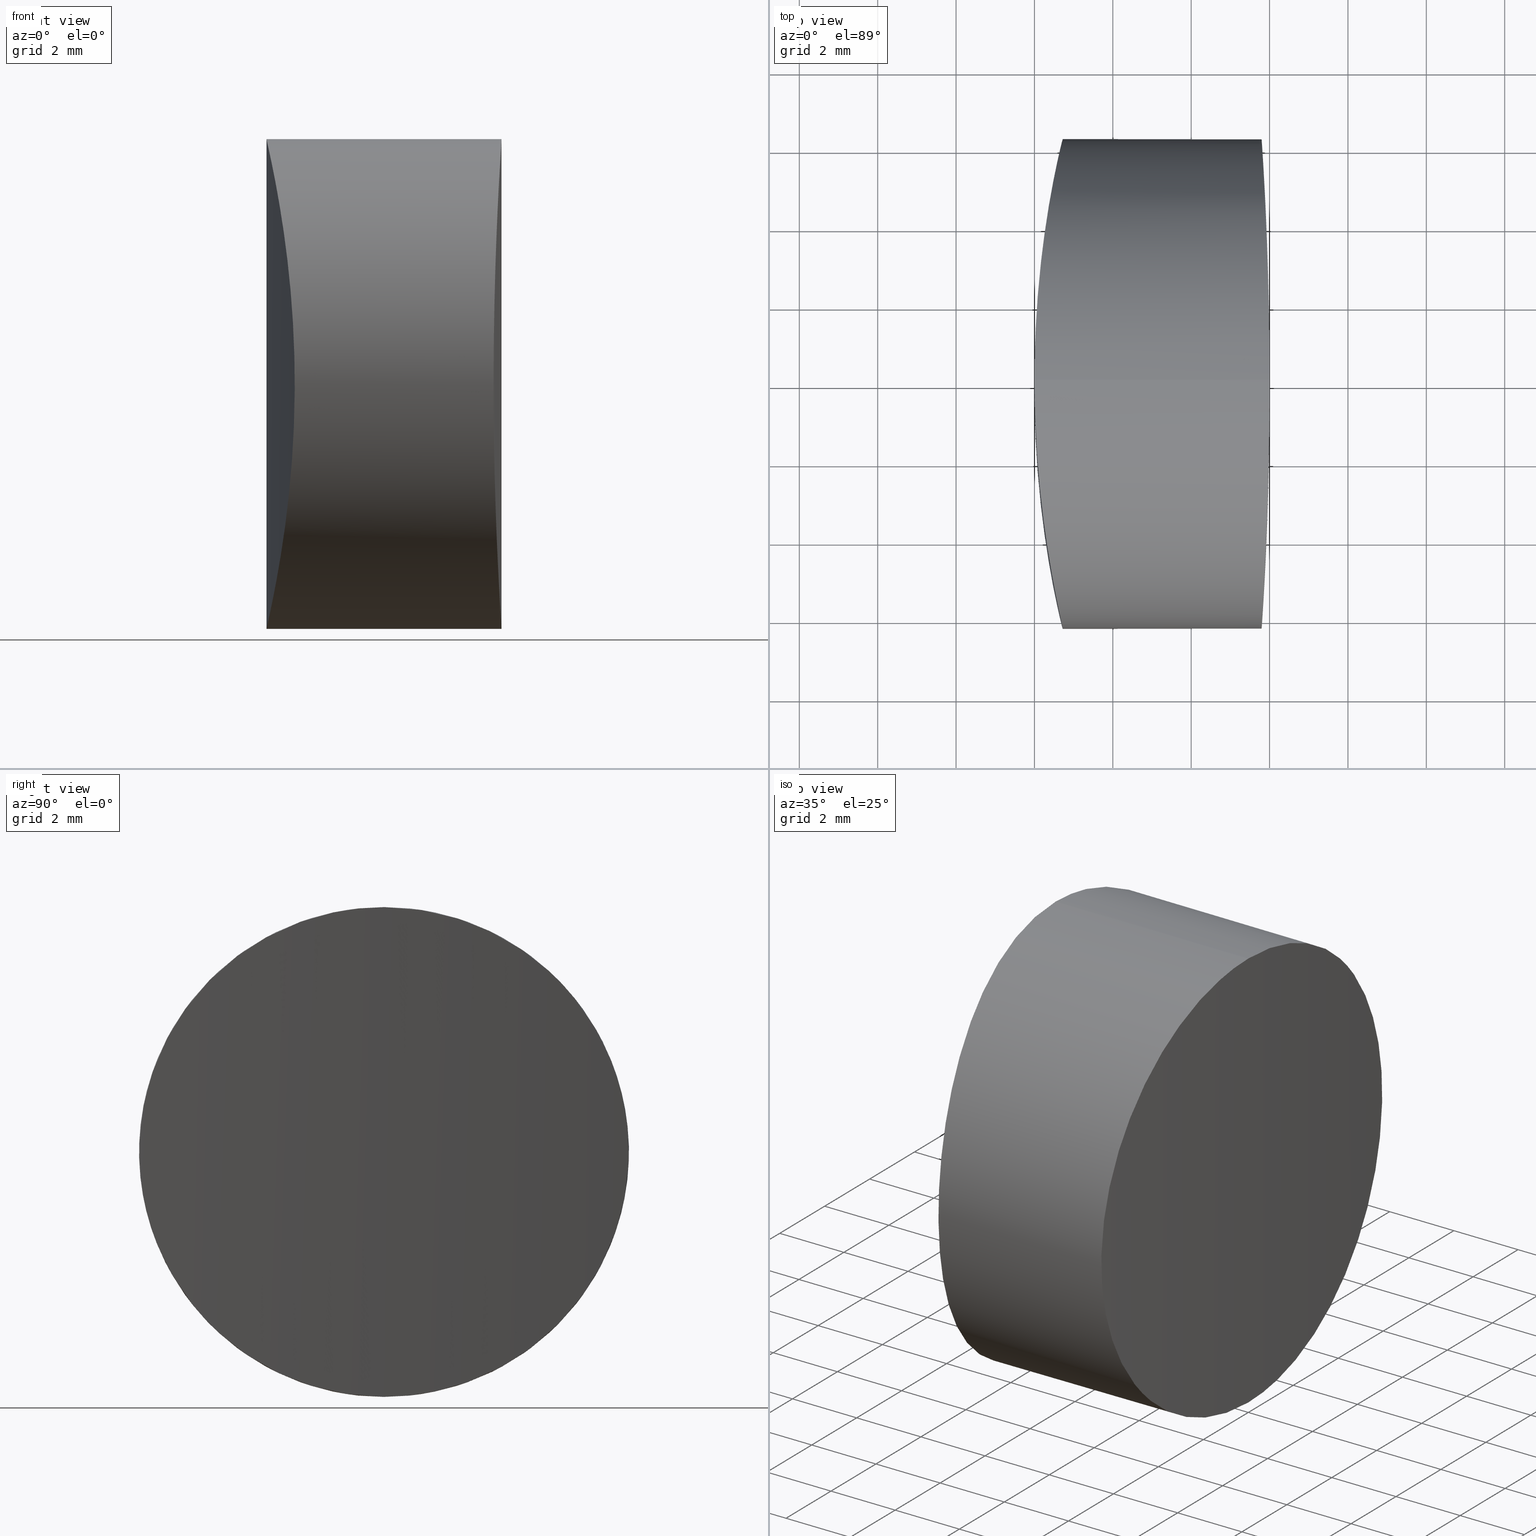
[diagram: canonical four-view strip — front | top / right | iso, engineering-drawing reading convention]
A machine part, canonical four-view strip (front | top / right | iso — engineering-drawing reading convention). The complete STEP part file that produces these views, byte-faithful:
ISO-10303-21;
HEADER;
FILE_DESCRIPTION (( 'STEP AP203' ),
    '1' );
FILE_NAME ('159001.STEP',
    '2024-12-10T00:45:07',
    ( '' ),
    ( '' ),
    'SwSTEP 2.0',
    'SolidWorks 2020',
    '' );
FILE_SCHEMA (( 'CONFIG_CONTROL_DESIGN' ));
ENDSEC;

DATA;
#1 = CARTESIAN_POINT ( 'NONE',  ( 3.970701140584363742, 2.393867264434657471, 0.6318106251234297810 ) ) ;
#2 = DATE_AND_TIME ( #212, #321 ) ;
#3 = PERSON_AND_ORGANIZATION ( #48, #12 ) ;
#4 = CC_DESIGN_PERSON_AND_ORGANIZATION_ASSIGNMENT ( #284, #55, ( #289 ) ) ;
#5 = CARTESIAN_POINT ( 'NONE',  ( 4.000000000000034639, -0.4076888879730743986, 12.66592046075587952 ) ) ;
#6 = CARTESIAN_POINT ( 'NONE',  ( 3.949354091395367305, -3.123143176412308097, 11.83351119732497914 ) ) ;
#7 = APPROVAL ( #56, 'δָ��' ) ;
#8 = APPLICATION_CONTEXT ( 'configuration controlled 3d designs of mechanical parts and assemblies' ) ;
#9 = CARTESIAN_POINT ( 'NONE',  ( 3.817280117353551994, -5.920506838117778337, 8.428926162006428413 ) ) ;
#10 = CARTESIAN_POINT ( 'NONE',  ( 3.885084351708768313, -4.704672186004944301, 10.55048873301067935 ) ) ;
#11 = CARTESIAN_POINT ( 'NONE',  ( -1.800133176060619622, -3.307827071247699813, 11.72271307982132349 ) ) ;
#12 = ORGANIZATION ( 'δָ��', 'δָ��', '' ) ;
#13 = CARTESIAN_POINT ( 'NONE',  ( 4.000000000000031086, 7.654041361186688762E-16, 12.66592046075587596 ) ) ;
#14 = CARTESIAN_POINT ( 'NONE',  ( -1.999999999999988232, -2.025794804607558316E-23, 0.1659204607558764366 ) ) ;
#15 = APPLICATION_PROTOCOL_DEFINITION ( 'international standard', 'config_control_design', 1994, #141 ) ;
#16 = EDGE_CURVE ( 'NONE', #145, #136, #259, .T. ) ;
#17 = CARTESIAN_POINT ( 'NONE',  ( -1.859925259449356938, 2.772965657853352806, 0.8110136745057094920 ) ) ;
#18 = CARTESIAN_POINT ( 'NONE',  ( -1.277742385581164042, -6.249644897103480368, 5.996348228157730276 ) ) ;
#19 = PERSON_AND_ORGANIZATION ( #48, #12 ) ;
#20 = CC_DESIGN_PERSON_AND_ORGANIZATION_ASSIGNMENT ( #326, #274, ( #224 ) ) ;
#21 = PERSON_AND_ORGANIZATION ( #48, #12 ) ;
#22 = CARTESIAN_POINT ( 'NONE',  ( 3.997319152655782304, 0.8217832976080150509, 12.62511903696444904 ) ) ;
#23 = DIRECTION ( 'NONE',  ( 1.000000000000000000, -0.000000000000000000, -0.000000000000000000 ) ) ;
#24 = CARTESIAN_POINT ( 'NONE',  ( 3.847259097544624584, 5.414084262280948856, 9.545173002638325244 ) ) ;
#25 = VECTOR ( 'NONE', #74, 1000.000000000000000 ) ;
#26 = CARTESIAN_POINT ( 'NONE',  ( 3.871542897612740841, 4.969767043136539719, 10.22769198370416532 ) ) ;
#27 = CARTESIAN_POINT ( 'NONE',  ( 3.949354187978777020, 3.123140200589369808, 0.9983280171350860099 ) ) ;
#28 = CARTESIAN_POINT ( 'NONE',  ( 3.836136953617952816, 5.607516269999798908, 9.183643559558131386 ) ) ;
#29 = ORIENTED_EDGE ( 'NONE', *, *, #16, .F. ) ;
#30 = CARTESIAN_POINT ( 'NONE',  ( 3.911645654583979947, 4.127901318534466846, 1.705397611034966898 ) ) ;
#31 = VERTEX_POINT ( 'NONE', #247 ) ;
#32 = CARTESIAN_POINT ( 'NONE',  ( 3.943262246357793988, -3.304407207787549261, 1.106981421419803047 ) ) ;
#33 = CARTESIAN_POINT ( 'NONE',  ( 3.986547965300297314, -1.618921193461015928, 12.45606951595329015 ) ) ;
#34 = CARTESIAN_POINT ( 'NONE',  ( 3.853150653249847402, -5.309080934119167594, 3.111744134081134483 ) ) ;
#35 = ORIENTED_EDGE ( 'NONE', *, *, #16, .T. ) ;
#36 = CARTESIAN_POINT ( 'NONE',  ( 25.40000000000000213, 0.000000000000000000, 13.00000000000000000 ) ) ;
#37 = CARTESIAN_POINT ( 'NONE',  ( -1.688777736513090044, -4.128307657407202846, 1.705877874206109146 ) ) ;
#38 = DIRECTION ( 'NONE',  ( -1.000000000000000000, 0.000000000000000000, 0.000000000000000000 ) ) ;
#39 = CARTESIAN_POINT ( 'NONE',  ( -1.368666903749001129, -5.848499614446377670, 4.202453446085107736 ) ) ;
#40 = DIRECTION ( 'NONE',  ( -0.000000000000000000, -0.000000000000000000, -1.000000000000000000 ) ) ;
#41 = CARTESIAN_POINT ( 'NONE',  ( -1.999999999999989120, -0.4090758849806570563, 0.1659204607558748545 ) ) ;
#42 = APPLICATION_PROTOCOL_DEFINITION ( 'international standard', 'config_control_design', 1994, #8 ) ;
#43 = CARTESIAN_POINT ( 'NONE',  ( -1.326400351442639458, -6.038484327259769913, 4.790667046276845475 ) ) ;
#44 =( LENGTH_UNIT ( ) NAMED_UNIT ( * ) SI_UNIT ( .MILLI., .METRE. ) );
#45 = EDGE_CURVE ( 'NONE', #136, #145, #273, .T. ) ;
#46 = COORDINATED_UNIVERSAL_TIME_OFFSET ( 8, 0, .AHEAD. ) ;
#47 = CARTESIAN_POINT ( 'NONE',  ( 4.000000000000031086, 7.654041361186688762E-16, 12.66592046075587596 ) ) ;
#48 = PERSON ( 'δָ��', 'δָ��', 'δָ��', ('δָ��'), ('δָ��'), ('δָ��') ) ;
#49 = CARTESIAN_POINT ( 'NONE',  ( -1.862258568810049253, 2.769757839151302026, 12.03343208499295258 ) ) ;
#50 = FACE_OUTER_BOUND ( 'NONE', #266, .T. ) ;
#51 = CARTESIAN_POINT ( 'NONE',  ( 3.806684533421547556, 6.089399972585498588, 4.993538616398564223 ) ) ;
#52 = CARTESIAN_POINT ( 'NONE',  ( -1.277574694169997915, 6.250360675676211564, 6.007157946108796054 ) ) ;
#53 = APPROVAL_ROLE ( '' ) ;
#54 = ORIENTED_EDGE ( 'NONE', *, *, #135, .F. ) ;
#55 = PERSON_AND_ORGANIZATION_ROLE ( 'classification_officer' ) ;
#56 = APPROVAL_STATUS ( 'not_yet_approved' ) ;
#57 = CARTESIAN_POINT ( 'NONE',  ( 3.949151214896460704, -3.129400080055220634, 1.001914720596386976 ) ) ;
#58 = CARTESIAN_POINT ( 'NONE',  ( 3.809242562367329388, -6.049416893789776317, 4.793020952678850755 ) ) ;
#59 = LOCAL_TIME ( 8, 45, 7.000000000000000000, #46 ) ;
#60 = CYLINDRICAL_SURFACE ( 'NONE', #95, 96.00000000000002842 ) ;
#61 = CARTESIAN_POINT ( 'NONE',  ( -1.990843026165532326, -0.8154627092326075521, 0.2056947684451029823 ) ) ;
#62 = PRODUCT_DEFINITION_SHAPE ( 'NONE', 'NONE',  #187 ) ;
#63 = CARTESIAN_POINT ( 'NONE',  ( 3.997319158381865023, -0.8217824357834193627, 0.2067217981263086424 ) ) ;
#64 = CARTESIAN_POINT ( 'NONE',  ( -1.862254581752714966, -2.769797751248795237, 0.7984280614749160732 ) ) ;
#65 = CC_DESIGN_PERSON_AND_ORGANIZATION_ASSIGNMENT ( #103, #109, ( #89 ) ) ;
#66 = AXIS2_PLACEMENT_3D ( 'NONE', #220, #119, #38 ) ;
#67 = DIRECTION ( 'NONE',  ( -1.000000000000000000, 0.000000000000000000, 0.000000000000000000 ) ) ;
#68 = CARTESIAN_POINT ( 'NONE',  ( -1.999999999999988232, -2.025794804607558316E-23, 0.1659204607558764366 ) ) ;
#69 =( GEOMETRIC_REPRESENTATION_CONTEXT ( 3 ) GLOBAL_UNCERTAINTY_ASSIGNED_CONTEXT ( ( #115 ) ) GLOBAL_UNIT_ASSIGNED_CONTEXT ( ( #44, #199, #198 ) ) REPRESENTATION_CONTEXT ( 'NONE', 'WORKASPACE' ) );
#70 = DATE_AND_TIME ( #229, #185 ) ;
#71 = CARTESIAN_POINT ( 'NONE',  ( -1.546775744305171729, 4.968328230239867693, 2.602332432678148955 ) ) ;
#72 = CARTESIAN_POINT ( 'NONE',  ( -1.287350413805169902, 6.209036227751648873, 5.592257759167049258 ) ) ;
#73 = CARTESIAN_POINT ( 'NONE',  ( -1.315050644076650066, 6.088329676846095495, 7.842938738167732460 ) ) ;
#74 = DIRECTION ( 'NONE',  ( 1.000000000000000000, -0.000000000000000000, -0.000000000000000000 ) ) ;
#75 = CARTESIAN_POINT ( 'NONE',  ( 4.000000000000034639, 0.4076888881608913828, 12.66592046075587419 ) ) ;
#76 = EDGE_CURVE ( 'NONE', #31, #79, #317, .T. ) ;
#77 = CARTESIAN_POINT ( 'NONE',  ( 3.871597177664503064, 4.968754873974420505, 2.602686793415346145 ) ) ;
#78 = CARTESIAN_POINT ( 'NONE',  ( -1.926573552974540915, 2.014189616208664990, 12.33601367040646224 ) ) ;
#79 = VERTEX_POINT ( 'NONE', #208 ) ;
#80 = CARTESIAN_POINT ( 'NONE',  ( 3.835785147991723765, 5.614895644616908044, 3.640456923618365259 ) ) ;
#81 = CARTESIAN_POINT ( 'NONE',  ( 3.817280280653655655, 5.920504197400468627, 4.402907011145934746 ) ) ;
#82 = ORIENTED_EDGE ( 'NONE', *, *, #76, .F. ) ;
#83 = CARTESIAN_POINT ( 'NONE',  ( -1.999999999999988676, -0.4090695196828597613, 12.66592046075587419 ) ) ;
#84 = APPROVAL_DATE_TIME ( #2, #7 ) ;
#85 = SHAPE_DEFINITION_REPRESENTATION ( #62, #110 ) ;
#86 = CARTESIAN_POINT ( 'NONE',  ( 3.943394893887861574, -3.300637131425163240, 11.72727709622732206 ) ) ;
#87 = DIRECTION ( 'NONE',  ( 1.000000000000000000, -0.000000000000000000, -0.000000000000000000 ) ) ;
#88 = DIRECTION ( 'NONE',  ( -0.000000000000000000, -0.000000000000000000, -1.000000000000000000 ) ) ;
#89 = PRODUCT_DEFINITION_FORMATION_WITH_SPECIFIED_SOURCE ( '�κ�', '', #224, .NOT_KNOWN. ) ;
#90 = CARTESIAN_POINT ( 'NONE',  ( 3.911645502597854041, -4.127904855501768111, 11.12644024944475696 ) ) ;
#91 = EDGE_CURVE ( 'NONE', #136, #79, #204, .T. ) ;
#92 = CARTESIAN_POINT ( 'NONE',  ( -1.928290907776921692, 2.017260835010109332, 0.4861948975080956359 ) ) ;
#93 = CARTESIAN_POINT ( 'NONE',  ( 3.911666615620656096, -4.127648566779655859, 1.704741974636377666 ) ) ;
#94 = CARTESIAN_POINT ( 'NONE',  ( -1.800127624215231981, 3.307872807059071274, 1.109156230123880427 ) ) ;
#95 = AXIS2_PLACEMENT_3D ( 'NONE', #316, #88, #67 ) ;
#96 = APPROVAL_ROLE ( '' ) ;
#97 = CARTESIAN_POINT ( 'NONE',  ( -1.952640428185131949, -1.622234451863575844, 0.3766473205276363312 ) ) ;
#98 = CARTESIAN_POINT ( 'NONE',  ( 3.821591588841473985, 5.850536504395219772, 4.207830710039567101 ) ) ;
#99 = LINE ( 'NONE', #255, #327 ) ;
#100 = CARTESIAN_POINT ( 'NONE',  ( -1.368676080480692558, 5.848457640996162610, 8.629498040734659980 ) ) ;
#101 = CARTESIAN_POINT ( 'NONE',  ( 3.796314688086376510, 6.250287374589430733, 6.824480164821547845 ) ) ;
#102 = CARTESIAN_POINT ( 'NONE',  ( -6.500000000000000000, 0.000000000000000000, 6.415920460755876853 ) ) ;
#103 = PERSON_AND_ORGANIZATION ( #48, #12 ) ;
#104 = CARTESIAN_POINT ( 'NONE',  ( 3.809242420778939930, 6.049419129845787779, 8.038811753146719141 ) ) ;
#105 = APPROVAL_PERSON_ORGANIZATION ( #19, #183, #96 ) ;
#106 = ADVANCED_FACE ( 'NONE', ( #50 ), #335, .T. ) ;
#107 = APPROVAL_DATE_TIME ( #70, #183 ) ;
#108 = CARTESIAN_POINT ( 'NONE',  ( 3.979150040975546698, 2.010237166812398169, 0.4944972460249934532 ) ) ;
#109 = PERSON_AND_ORGANIZATION_ROLE ( 'creator' ) ;
#110 = ADVANCED_BREP_SHAPE_REPRESENTATION ( '159001', ( #203, #111 ), #69 ) ;
#111 = AXIS2_PLACEMENT_3D ( 'NONE', #230, #252, #196 ) ;
#112 = CARTESIAN_POINT ( 'NONE',  ( 3.799038935728874744, -6.208905874860579210, 7.239228859638980218 ) ) ;
#113 = CC_DESIGN_DATE_AND_TIME_ASSIGNMENT ( #123, #227, ( #187 ) ) ;
#114 = CARTESIAN_POINT ( 'NONE',  ( -6.500000000000000000, 0.000000000000000000, 6.415920460755876853 ) ) ;
#115 = UNCERTAINTY_MEASURE_WITH_UNIT (LENGTH_MEASURE( 1.000000000000000082E-05 ), #44, 'distance_accuracy_value', 'NONE');
#116 = CARTESIAN_POINT ( 'NONE',  ( 3.970701298954986580, -2.393869626790158023, 12.20002931895609066 ) ) ;
#117 = DIRECTION ( 'NONE',  ( -0.000000000000000000, -0.000000000000000000, -1.000000000000000000 ) ) ;
#118 = CARTESIAN_POINT ( 'NONE',  ( -1.459491742331598063, -5.420397806691622300, 9.553916832810015691 ) ) ;
#119 = DIRECTION ( 'NONE',  ( -0.000000000000000000, -0.000000000000000000, -1.000000000000000000 ) ) ;
#120 = CARTESIAN_POINT ( 'NONE',  ( -1.954594591572518913, 1.627095634744305741, 0.3675766573735297915 ) ) ;
#121 = CALENDAR_DATE ( 2024, 10, 12 ) ;
#122 = CARTESIAN_POINT ( 'NONE',  ( -1.418654394978109634, -5.616530468985599711, 9.187919713756221185 ) ) ;
#123 = DATE_AND_TIME ( #121, #340 ) ;
#124 = VECTOR ( 'NONE', #218, 1000.000000000000000 ) ;
#125 = CARTESIAN_POINT ( 'NONE',  ( -1.287354884381756603, -6.209017109956821656, 7.239723577594262771 ) ) ;
#126 = APPROVAL_STATUS ( 'not_yet_approved' ) ;
#127 = CALENDAR_DATE ( 2024, 10, 12 ) ;
#128 = CARTESIAN_POINT ( 'NONE',  ( -1.594925943440980376, 4.703060275166605742, 10.55218012694327179 ) ) ;
#129 = CC_DESIGN_PERSON_AND_ORGANIZATION_ASSIGNMENT ( #137, #286, ( #89 ) ) ;
#130 = CARTESIAN_POINT ( 'NONE',  ( 3.799022910531853370, 6.209155694579083118, 7.237889752115528985 ) ) ;
#131 = APPROVAL_PERSON_ORGANIZATION ( #3, #7, #53 ) ;
#132 = CARTESIAN_POINT ( 'NONE',  ( -6.500000000000000000, 0.000000000000000000, 0.1659204607558761313 ) ) ;
#133 = CARTESIAN_POINT ( 'NONE',  ( 3.830892640603730026, 5.696155008867870073, 8.996287822504227094 ) ) ;
#134 = CARTESIAN_POINT ( 'NONE',  ( -1.688785723069319733, 4.128255163304336506, 11.12600849439494510 ) ) ;
#135 = EDGE_CURVE ( 'NONE', #145, #31, #155, .T. ) ;
#136 = VERTEX_POINT ( 'NONE', #280 ) ;
#137 = PERSON_AND_ORGANIZATION ( #48, #12 ) ;
#138 = CARTESIAN_POINT ( 'NONE',  ( 3.943395001072908634, 3.300634010918813033, 1.104561893720724663 ) ) ;
#139 = CARTESIAN_POINT ( 'NONE',  ( -1.878369828570004563, -2.585874087644202568, 12.10959023202793539 ) ) ;
#140 = COORDINATED_UNIVERSAL_TIME_OFFSET ( 8, 0, .AHEAD. ) ;
#141 = APPLICATION_CONTEXT ( 'configuration controlled 3d designs of mechanical parts and assemblies' ) ;
#142 = CARTESIAN_POINT ( 'NONE',  ( 3.989734147802635356, -1.418317034022544831, 12.50633566470187752 ) ) ;
#143 = CARTESIAN_POINT ( 'NONE',  ( 3.830892825837849625, -5.696151894775535851, 3.835546239348476050 ) ) ;
#144 = CARTESIAN_POINT ( 'NONE',  ( 3.924879715627688892, -3.812107214572827640, 1.446403234941930460 ) ) ;
#145 = VERTEX_POINT ( 'NONE', #165 ) ;
#146 = CARTESIAN_POINT ( 'NONE',  ( 3.987112076101931191, -1.623245901839603045, 0.3665777571289874359 ) ) ;
#147 = CARTESIAN_POINT ( 'NONE',  ( -1.963876316551206980, -1.420946237911562493, 0.3261127927041618246 ) ) ;
#148 = CARTESIAN_POINT ( 'NONE',  ( 3.997402903059730228, -0.8132501256730777506, 12.62641532790719090 ) ) ;
#149 = CARTESIAN_POINT ( 'NONE',  ( -1.547160775702159929, -4.966282481072711086, 2.599515193382293532 ) ) ;
#150 = CARTESIAN_POINT ( 'NONE',  ( -1.593582395901175897, 4.710914236144385647, 2.288228895437081079 ) ) ;
#151 = APPROVAL_ROLE ( '' ) ;
#152 = CARTESIAN_POINT ( 'NONE',  ( -1.351181746026651975, -5.929579517754419271, 8.433215954803619852 ) ) ;
#153 = APPROVAL_DATE_TIME ( #331, #291 ) ;
#154 = CARTESIAN_POINT ( 'NONE',  ( -1.952641877828973582, 1.622209684167594812, 12.45520014972431255 ) ) ;
#155 = LINE ( 'NONE', #201, #124 ) ;
#156 = CARTESIAN_POINT ( 'NONE',  ( -1.277744816031712194, 6.249634522894289113, 6.835639056565093519 ) ) ;
#157 = CARTESIAN_POINT ( 'NONE',  ( 3.809835969932800825, 6.039776630583848060, 4.795521944217352228 ) ) ;
#158 = ORIENTED_EDGE ( 'NONE', *, *, #332, .T. ) ;
#159 = CARTESIAN_POINT ( 'NONE',  ( -1.735384002657419877, 3.814376131947823545, 11.38399394522757468 ) ) ;
#160 = ORIENTED_EDGE ( 'NONE', *, *, #76, .T. ) ;
#161 = CARTESIAN_POINT ( 'NONE',  ( 3.960418955516796125, -2.762348228958852570, 12.02606706769031319 ) ) ;
#162 = CARTESIAN_POINT ( 'NONE',  ( 3.796352340711017348, -6.249710257106227296, 6.833215861414211112 ) ) ;
#163 = CARTESIAN_POINT ( 'NONE',  ( 3.836137143758361123, -5.607513021927315933, 3.648190799253014927 ) ) ;
#164 = CARTESIAN_POINT ( 'NONE',  ( -1.859929334121180666, -2.772925473852926093, 12.02084701800902522 ) ) ;
#165 = CARTESIAN_POINT ( 'NONE',  ( -1.999999999999989120, 2.025715918517036215E-23, 12.66592046075587596 ) ) ;
#166 = CARTESIAN_POINT ( 'NONE',  ( -1.926571353868141045, -2.014219713028831737, 0.4958373847558922298 ) ) ;
#167 = CYLINDRICAL_SURFACE ( 'NONE', #237, 27.39999999999999147 ) ;
#168 = CARTESIAN_POINT ( 'NONE',  ( -1.735342481329319231, 3.814321636421825534, 1.448171787291351764 ) ) ;
#169 = ADVANCED_FACE ( 'NONE', ( #324 ), #60, .T. ) ;
#170 = PERSON_AND_ORGANIZATION_ROLE ( 'creator' ) ;
#171 = CARTESIAN_POINT ( 'NONE',  ( -1.324255236921195955, -6.048221741021194475, 8.043667006901126015 ) ) ;
#172 = COORDINATED_UNIVERSAL_TIME_OFFSET ( 8, 0, .AHEAD. ) ;
#173 = APPROVAL_STATUS ( 'not_yet_approved' ) ;
#174 = CARTESIAN_POINT ( 'NONE',  ( -1.547170903636142736, 4.966227613300333132, 10.23239650385385424 ) ) ;
#175 = CARTESIAN_POINT ( 'NONE',  ( -1.353199154503197166, 5.918623497734517791, 8.434493327166119769 ) ) ;
#176 = CARTESIAN_POINT ( 'NONE',  ( 3.960419032364648206, 2.762345549659964483, 0.8057725427426374321 ) ) ;
#177 = CARTESIAN_POINT ( 'NONE',  ( 3.924879581463222245, 3.812110609171539100, 11.38543511681904619 ) ) ;
#178 = CARTESIAN_POINT ( 'NONE',  ( -1.999999999999989120, 2.025715918517036215E-23, 12.66592046075587596 ) ) ;
#179 = ORIENTED_EDGE ( 'NONE', *, *, #269, .T. ) ;
#180 = CARTESIAN_POINT ( 'NONE',  ( 4.000000000000032863, 1.133498457493967443E-22, 0.1659204607558763811 ) ) ;
#181 = ORIENTED_EDGE ( 'NONE', *, *, #45, .T. ) ;
#182 = CARTESIAN_POINT ( 'NONE',  ( -1.990530916302228892, -0.8246798433500922565, 12.62476906551035150 ) ) ;
#183 = APPROVAL ( #173, 'δָ��' ) ;
#184 = ORIENTED_EDGE ( 'NONE', *, *, #91, .F. ) ;
#185 = LOCAL_TIME ( 8, 45, 7.000000000000000000, #298 ) ;
#186 = CARTESIAN_POINT ( 'NONE',  ( 4.000000000000037303, -0.4076884617759499174, 0.1659204607558751599 ) ) ;
#187 = PRODUCT_DEFINITION ( 'δ֪', '', #89, #319 ) ;
#188 = CARTESIAN_POINT ( 'NONE',  ( 3.960269895424069819, -2.767555838187457873, 0.8083151164004054312 ) ) ;
#189 = CC_DESIGN_SECURITY_CLASSIFICATION ( #289, ( #89 ) ) ;
#190 = CARTESIAN_POINT ( 'NONE',  ( 3.799022993395650083, -6.209154422323536870, 5.593941794411146695 ) ) ;
#191 = ORIENTED_EDGE ( 'NONE', *, *, #269, .F. ) ;
#192 = CARTESIAN_POINT ( 'NONE',  ( 3.809835829858550849, -6.039778850516621667, 8.036310725574413283 ) ) ;
#193 = CARTESIAN_POINT ( 'NONE',  ( -1.594916413526569876, -4.703115052720697520, 2.279722438152104846 ) ) ;
#194 = CARTESIAN_POINT ( 'NONE',  ( 3.796314732227913158, -6.250286698013220565, 6.007349852625088360 ) ) ;
#195 = CARTESIAN_POINT ( 'NONE',  ( -1.820852570463257880, -3.133376504974585419, 11.82759941222900757 ) ) ;
#196 = DIRECTION ( 'NONE',  ( 1.000000000000000000, 0.000000000000000000, 0.000000000000000000 ) ) ;
#197 = CARTESIAN_POINT ( 'NONE',  ( -1.820847519368841816, 3.133420498061239012, 1.004266868320667028 ) ) ;
#198 =( NAMED_UNIT ( * ) SI_UNIT ( $, .STERADIAN. ) SOLID_ANGLE_UNIT ( ) );
#199 =( NAMED_UNIT ( * ) PLANE_ANGLE_UNIT ( ) SI_UNIT ( $, .RADIAN. ) );
#200 = CARTESIAN_POINT ( 'NONE',  ( 3.979642841157838173, 2.012801628194695436, 12.34709159796433120 ) ) ;
#201 = CARTESIAN_POINT ( 'NONE',  ( -6.500000000000000000, 7.654042494670955634E-16, 12.66592046075587596 ) ) ;
#202 = CARTESIAN_POINT ( 'NONE',  ( 3.943262140410059846, 3.304410289334033024, 11.72485759007748740 ) ) ;
#203 = MANIFOLD_SOLID_BREP ( '�г�-����1', #302 ) ;
#204 = LINE ( 'NONE', #132, #25 ) ;
#205 = CARTESIAN_POINT ( 'NONE',  ( -1.911696865473067941, 2.206080125144447290, 12.26716685066609536 ) ) ;
#206 = CARTESIAN_POINT ( 'NONE',  ( -1.418644193847633961, 5.616579042898385055, 3.644018781763239456 ) ) ;
#207 = PRODUCT_RELATED_PRODUCT_CATEGORY ( 'detail', '', ( #224 ) ) ;
#208 = CARTESIAN_POINT ( 'NONE',  ( 4.000000000000032863, 1.133498457493967443E-22, 0.1659204607558763811 ) ) ;
#209 = CARTESIAN_POINT ( 'NONE',  ( -1.419513095440953832, 5.612452302191519138, 9.196281782611283262 ) ) ;
#210 = EDGE_LOOP ( 'NONE', ( #181, #282, #160, #184 ) ) ;
#211 = CARTESIAN_POINT ( 'NONE',  ( 3.989734169128582586, 1.418315561059886765, 0.3255049212500812916 ) ) ;
#212 = CALENDAR_DATE ( 2024, 10, 12 ) ;
#213 = AXIS2_PLACEMENT_3D ( 'NONE', #102, #23, #333 ) ;
#214 = LOCAL_TIME ( 8, 45, 7.000000000000000000, #241 ) ;
#215 = DIRECTION ( 'NONE',  ( -1.000000000000000000, 0.000000000000000000, 0.000000000000000000 ) ) ;
#216 = DIRECTION ( 'NONE',  ( 0.000000000000000000, 0.000000000000000000, -1.000000000000000000 ) ) ;
#217 = FACE_OUTER_BOUND ( 'NONE', #210, .T. ) ;
#218 = DIRECTION ( 'NONE',  ( 1.000000000000000000, -0.000000000000000000, -0.000000000000000000 ) ) ;
#219 = CC_DESIGN_APPROVAL ( #7, ( #289 ) ) ;
#220 = CARTESIAN_POINT ( 'NONE',  ( 25.40000000000000213, 0.000000000000000000, 13.00000000000000000 ) ) ;
#221 = CARTESIAN_POINT ( 'NONE',  ( -1.999999999999988676, 0.4090758884382472149, 0.1659204607558747990 ) ) ;
#222 = CARTESIAN_POINT ( 'NONE',  ( 3.806684406599579518, -6.089401966308023439, 7.838293799004808271 ) ) ;
#223 = CARTESIAN_POINT ( 'NONE',  ( -1.459534544501168041, -5.420225051240882053, 3.277438145918440959 ) ) ;
#224 = PRODUCT ( '159001', '159001', '', ( #225 ) ) ;
#225 = MECHANICAL_CONTEXT ( 'NONE', #8, 'mechanical' ) ;
#226 = CARTESIAN_POINT ( 'NONE',  ( -1.822652396978329481, -3.131410010401908917, 0.9913932445738700139 ) ) ;
#227 = DATE_TIME_ROLE ( 'creation_date' ) ;
#228 = CARTESIAN_POINT ( 'NONE',  ( -1.419502987205274236, -5.612500485120262894, 3.635655335739091498 ) ) ;
#229 = CALENDAR_DATE ( 2024, 10, 12 ) ;
#230 = CARTESIAN_POINT ( 'NONE',  ( 0.000000000000000000, 0.000000000000000000, 0.000000000000000000 ) ) ;
#231 = CARTESIAN_POINT ( 'NONE',  ( -1.963877432318550387, 1.420924309365094507, 12.50573313448479595 ) ) ;
#232 = CARTESIAN_POINT ( 'NONE',  ( -1.822657548445254516, 3.131364917687820881, 11.84047326954647694 ) ) ;
#233 = CARTESIAN_POINT ( 'NONE',  ( 3.885084532779451205, 4.704668490741449993, 2.281348027537908330 ) ) ;
#234 = CARTESIAN_POINT ( 'NONE',  ( 3.816722461102150188, 5.931303527217370863, 8.428393788411538523 ) ) ;
#235 = CARTESIAN_POINT ( 'NONE',  ( 3.986547992926378292, 1.618919533692513069, 0.3757709677204121301 ) ) ;
#236 = CARTESIAN_POINT ( 'NONE',  ( -1.459544857805015194, 5.420174023815212294, 9.554490142347527026 ) ) ;
#237 = AXIS2_PLACEMENT_3D ( 'NONE', #36, #117, #215 ) ;
#238 = SECURITY_CLASSIFICATION_LEVEL ( 'unclassified' ) ;
#239 = ORIENTED_EDGE ( 'NONE', *, *, #45, .F. ) ;
#240 = ADVANCED_FACE ( 'NONE', ( #290 ), #287, .T. ) ;
#241 = COORDINATED_UNIVERSAL_TIME_OFFSET ( 8, 0, .AHEAD. ) ;
#242 = CARTESIAN_POINT ( 'NONE',  ( 4.000000000000032863, 1.133498457493967443E-22, 0.1659204607558763811 ) ) ;
#243 = CYLINDRICAL_SURFACE ( 'NONE', #303, 6.250000000000000000 ) ;
#244 = CARTESIAN_POINT ( 'NONE',  ( 3.884780341060748210, -4.711069371525963945, 2.288147357061428355 ) ) ;
#245 = CARTESIAN_POINT ( 'NONE',  ( -1.954595970179865638, -1.627070996962218352, 12.46427046812432060 ) ) ;
#246 = CARTESIAN_POINT ( 'NONE',  ( 3.846991807807131902, -5.422714424458106919, 9.550157942218406859 ) ) ;
#247 = CARTESIAN_POINT ( 'NONE',  ( 4.000000000000031086, 7.654041361186688762E-16, 12.66592046075587596 ) ) ;
#248 = CC_DESIGN_PERSON_AND_ORGANIZATION_ASSIGNMENT ( #300, #170, ( #187 ) ) ;
#249 = B_SPLINE_CURVE_WITH_KNOTS ( 'NONE', 3,
 ( #242, #186, #63, #146, #322, #250, #188, #57, #32, #144, #93, #244, #265, #34, #320, #163, #143, #270, #58, #190, #194, #162, #112, #222, #192, #9, #295, #267, #246, #264, #10, #90, #293, #86, #6, #161, #116, #318, #33, #142, #148, #5, #13 ),
 .UNSPECIFIED., .F., .F.,
 ( 4, 2, 2, 2, 2, 2, 2, 2, 2, 2, 2, 2, 2, 2, 2, 2, 2, 2, 1, 2, 2, 4 ),
 ( 0.02931637506783831004, 0.03053771150170834017, 0.03175904793557837030, 0.03236971615251338363, 0.03298038436944839696, 0.03420172080331842362, 0.03542305723718845722, 0.03603372545412347056, 0.03664439367105848389, 0.03786573010492851749, 0.03908706653879855109, 0.04030840297266857775, 0.04091907118960359802, 0.04152973940653861135, 0.04275107584040863801, 0.04397241227427866467, 0.04519374870814869133, 0.04580441692508370466, 0.04641508514201871799, 0.04702575335895373132, 0.04763642157588873771, 0.04885775800975876437 ),
 .UNSPECIFIED. ) ;
#250 = CARTESIAN_POINT ( 'NONE',  ( 3.965504265847399346, -2.580270046595003919, 0.7197268405786042544 ) ) ;
#251 = CARTESIAN_POINT ( 'NONE',  ( -1.911694245793974289, -2.206112766846645368, 0.5646862687535767478 ) ) ;
#252 = DIRECTION ( 'NONE',  ( 0.000000000000000000, 0.000000000000000000, 1.000000000000000000 ) ) ;
#253 = CARTESIAN_POINT ( 'NONE',  ( -1.277577062018947052, -6.250350568677394136, 6.824845841348863296 ) ) ;
#254 = CARTESIAN_POINT ( 'NONE',  ( -1.315043840504454886, -6.088359504926769361, 4.989029010618349247 ) ) ;
#255 = CARTESIAN_POINT ( 'NONE',  ( -1.999999999999988010, 0.000000000000000000, 13.00000000000000000 ) ) ;
#256 = CARTESIAN_POINT ( 'NONE',  ( 3.911666462844916481, 4.127652124117149768, 11.12709587291777424 ) ) ;
#257 = CARTESIAN_POINT ( 'NONE',  ( 3.853150459492664215, 5.309084431220586708, 9.720091181787495316 ) ) ;
#258 = CARTESIAN_POINT ( 'NONE',  ( -1.999999999999988676, 0.4090695231403943533, 12.66592046075587419 ) ) ;
#259 = B_SPLINE_CURVE_WITH_KNOTS ( 'NONE', 3,
 ( #312, #83, #182, #245, #283, #139, #164, #195, #11, #296, #323, #271, #268, #118, #122, #152, #171, #125, #253, #18, #328, #254, #43, #275, #39, #228, #223, #149, #193, #37, #330, #226, #64, #251, #166, #97, #147, #61, #41, #68 ),
 .UNSPECIFIED., .F., .F.,
 ( 4, 2, 2, 2, 2, 2, 2, 2, 2, 2, 2, 2, 2, 2, 2, 2, 2, 2, 2, 4 ),
 ( 0.009804959194996628463, 0.01102990417633190404, 0.01225484915766717961, 0.01286732164833481740, 0.01347979413900245518, 0.01470473912033773076, 0.01592968410167300980, 0.01715462908300828537, 0.01837957406434356095, 0.01960451904567883999, 0.02082946402701411903, 0.02144193651768176029, 0.02205440900834940154, 0.02327935398968467712, 0.02450429897101995616, 0.02572924395235523520, 0.02695418893369051772, 0.02756666142435815550, 0.02817913391502579329, 0.02940407889636107233 ),
 .UNSPECIFIED. ) ;
#260 = EDGE_LOOP ( 'NONE', ( #191, #82 ) ) ;
#261 = CARTESIAN_POINT ( 'NONE',  ( 3.924847980163156613, 3.813195091562492589, 1.446926397538411013 ) ) ;
#262 = CARTESIAN_POINT ( 'NONE',  ( 3.960269817474967535, 2.767558549271831314, 12.02352447444030759 ) ) ;
#263 = ADVANCED_FACE ( 'NONE', ( #288 ), #167, .T. ) ;
#264 = CARTESIAN_POINT ( 'NONE',  ( 3.871596986240208427, -4.968758561553449304, 10.22914936503369887 ) ) ;
#265 = CARTESIAN_POINT ( 'NONE',  ( 3.871543087175278952, -4.969763390990897811, 2.604144222739221970 ) ) ;
#266 = EDGE_LOOP ( 'NONE', ( #54, #35, #338, #179 ) ) ;
#267 = CARTESIAN_POINT ( 'NONE',  ( 3.835784958004119893, -5.614898879492215222, 9.191377525179291297 ) ) ;
#268 = CARTESIAN_POINT ( 'NONE',  ( -1.546785749703219359, -4.968274026134045229, 10.22957839180503470 ) ) ;
#269 = EDGE_CURVE ( 'NONE', #79, #31, #249, .T. ) ;
#270 = CARTESIAN_POINT ( 'NONE',  ( 3.816722624154751831, -5.931300901832422312, 4.403439470694864077 ) ) ;
#271 = CARTESIAN_POINT ( 'NONE',  ( -1.593591914463043491, -4.710859660480168465, 10.54367375084425795 ) ) ;
#272 = CC_DESIGN_APPROVAL ( #291, ( #187 ) ) ;
#273 = B_SPLINE_CURVE_WITH_KNOTS ( 'NONE', 3,
 ( #14, #221, #294, #120, #92, #325, #17, #197, #94, #168, #299, #150, #71, #276, #206, #308, #336, #72, #52, #156, #301, #73, #277, #175, #100, #209, #236, #174, #128, #134, #159, #232, #49, #205, #78, #154, #231, #337, #258, #178 ),
 .UNSPECIFIED., .F., .F.,
 ( 4, 2, 2, 2, 2, 2, 2, 2, 2, 2, 2, 2, 2, 2, 2, 2, 2, 2, 2, 4 ),
 ( 0.02940407889636107233, 0.03062902388804982987, 0.03185396887973859087, 0.03246644137558296617, 0.03307891387142734840, 0.03430385886311610594, 0.03552880385480487041, 0.03675374884649362794, 0.03797869383818239242, 0.03920363882987114995, 0.04042858382155990749, 0.04104105631740428278, 0.04165352881324866502, 0.04287847380493740868, 0.04410341879662616621, 0.04532836378831491680, 0.04655330878000366740, 0.04716578127584804270, 0.04777825377169242493, 0.04900319876338117553 ),
 .UNSPECIFIED. ) ;
#274 = PERSON_AND_ORGANIZATION_ROLE ( 'design_owner' ) ;
#275 = CARTESIAN_POINT ( 'NONE',  ( -1.353190414214171300, -5.918662972070131367, 4.397463065891280110 ) ) ;
#276 = CARTESIAN_POINT ( 'NONE',  ( -1.459481361792043907, 5.420449187366095600, 3.278011976035771546 ) ) ;
#277 = CARTESIAN_POINT ( 'NONE',  ( -1.326407860301003439, 6.038451125353795135, 8.041296888435431001 ) ) ;
#278 = CARTESIAN_POINT ( 'NONE',  ( 3.987112049802486791, 1.623247554669996706, 12.46526274924277544 ) ) ;
#279 = CARTESIAN_POINT ( 'NONE',  ( 3.799039017625655212, 6.208904617575132789, 5.592602782711422194 ) ) ;
#280 = CARTESIAN_POINT ( 'NONE',  ( -1.999999999999988232, -2.025794804607558316E-23, 0.1659204607558764366 ) ) ;
#281 = CARTESIAN_POINT ( 'NONE',  ( 3.965504197679731835, 2.580272594666831676, 12.11211293472836559 ) ) ;
#282 = ORIENTED_EDGE ( 'NONE', *, *, #135, .T. ) ;
#283 = CARTESIAN_POINT ( 'NONE',  ( -1.928293064056635142, -2.017230629002966680, 12.34565583724613802 ) ) ;
#284 = PERSON_AND_ORGANIZATION ( #48, #12 ) ;
#285 = EDGE_LOOP ( 'NONE', ( #292, #239 ) ) ;
#286 = PERSON_AND_ORGANIZATION_ROLE ( 'design_supplier' ) ;
#287 = CYLINDRICAL_SURFACE ( 'NONE', #66, 27.39999999999999147 ) ;
#288 = FACE_OUTER_BOUND ( 'NONE', #285, .T. ) ;
#289 = SECURITY_CLASSIFICATION ( '', '', #238 ) ;
#290 = FACE_OUTER_BOUND ( 'NONE', #309, .T. ) ;
#291 = APPROVAL ( #126, 'δָ��' ) ;
#292 = ORIENTED_EDGE ( 'NONE', *, *, #332, .F. ) ;
#293 = CARTESIAN_POINT ( 'NONE',  ( 3.924847845684324099, -3.813198491252449251, 11.38491194760170266 ) ) ;
#294 = CARTESIAN_POINT ( 'NONE',  ( -1.990530616496565930, 0.8246926825531656347, 0.2070731484231863595 ) ) ;
#295 = CARTESIAN_POINT ( 'NONE',  ( 3.821591416870487201, -5.850539319094345103, 8.624002776154537031 ) ) ;
#296 = CARTESIAN_POINT ( 'NONE',  ( -1.735349532668371886, -3.814271182646518099, 11.38370736091765423 ) ) ;
#297 = APPROVAL_PERSON_ORGANIZATION ( #21, #291, #151 ) ;
#298 = COORDINATED_UNIVERSAL_TIME_OFFSET ( 8, 0, .AHEAD. ) ;
#299 = CARTESIAN_POINT ( 'NONE',  ( -1.688332098000617121, 4.131400204899446926, 1.708258307874834125 ) ) ;
#300 = PERSON_AND_ORGANIZATION ( #48, #12 ) ;
#301 = CARTESIAN_POINT ( 'NONE',  ( -1.287473228372622902, 6.208504599585721095, 7.242678169551171941 ) ) ;
#302 = CLOSED_SHELL ( 'NONE', ( #305, #240, #169, #263, #106 ) ) ;
#303 = AXIS2_PLACEMENT_3D ( 'NONE', #114, #87, #216 ) ;
#304 = CC_DESIGN_APPROVAL ( #183, ( #89 ) ) ;
#305 = ADVANCED_FACE ( 'NONE', ( #217 ), #243, .T. ) ;
#306 = CARTESIAN_POINT ( 'NONE',  ( 4.000000000000034639, 0.4076884619637705098, 0.1659204607558753819 ) ) ;
#307 = CARTESIAN_POINT ( 'NONE',  ( 3.796352385796852857, 6.249709566056590226, 5.998615252689856625 ) ) ;
#308 = CARTESIAN_POINT ( 'NONE',  ( -1.351173038985984398, 5.929618670669481340, 4.398738891443029431 ) ) ;
#309 = EDGE_LOOP ( 'NONE', ( #29, #158 ) ) ;
#310 = CARTESIAN_POINT ( 'NONE',  ( 3.884780156405191587, 4.711073136301743958, 10.54368931648213703 ) ) ;
#311 = DATE_TIME_ROLE ( 'classification_date' ) ;
#312 = CARTESIAN_POINT ( 'NONE',  ( -1.999999999999989120, 2.025715918517036215E-23, 12.66592046075587596 ) ) ;
#313 = CARTESIAN_POINT ( 'NONE',  ( 3.997402908488032924, 0.8132492780566611401, 0.2054255118702897898 ) ) ;
#314 = CALENDAR_DATE ( 2024, 10, 12 ) ;
#315 = DATE_AND_TIME ( #314, #214 ) ;
#316 = CARTESIAN_POINT ( 'NONE',  ( -92.00000000000000000, -1.102182119232617911E-14, 13.00000000000000000 ) ) ;
#317 = B_SPLINE_CURVE_WITH_KNOTS ( 'NONE', 3,
 ( #47, #75, #22, #278, #200, #281, #262, #334, #202, #177, #256, #310, #26, #257, #24, #28, #133, #234, #104, #130, #101, #307, #279, #51, #157, #81, #98, #80, #339, #77, #233, #30, #261, #138, #27, #176, #1, #108, #235, #211, #313, #306, #180 ),
 .UNSPECIFIED., .F., .F.,
 ( 4, 2, 2, 2, 2, 2, 2, 2, 2, 2, 2, 2, 2, 2, 2, 2, 2, 2, 1, 2, 2, 4 ),
 ( 0.009774992116915404150, 0.01099632855134807970, 0.01221766498578075524, 0.01282833320299709215, 0.01343900142021343079, 0.01466033785464610634, 0.01588167428907878362, 0.01649234250629512399, 0.01710301072351146437, 0.01832434715794415206, 0.01954568359237683628, 0.02076702002680951703, 0.02137768824402586088, 0.02198835646124220472, 0.02320969289567489241, 0.02443102933010757316, 0.02565236576454026085, 0.02626303398175660123, 0.02687370219897294507, 0.02748437041618928545, 0.02809503863340562929, 0.02931637506783831004 ),
 .UNSPECIFIED. ) ;
#318 = CARTESIAN_POINT ( 'NONE',  ( 3.979149999027924878, -2.010239187168857189, 12.33734299676950918 ) ) ;
#319 = DESIGN_CONTEXT ( 'detailed design', #141, 'design' ) ;
#320 = CARTESIAN_POINT ( 'NONE',  ( 3.847259291266778902, -5.414080834363255157, 3.286662003992096182 ) ) ;
#321 = LOCAL_TIME ( 8, 45, 7.000000000000000000, #140 ) ;
#322 = CARTESIAN_POINT ( 'NONE',  ( 3.979642882266740678, -2.012799602405052291, 0.4847486669049839714 ) ) ;
#323 = CARTESIAN_POINT ( 'NONE',  ( -1.688340280940217264, -4.131346512856988618, 11.12362924054241198 ) ) ;
#324 = FACE_OUTER_BOUND ( 'NONE', #260, .T. ) ;
#325 = CARTESIAN_POINT ( 'NONE',  ( -1.878366243185419560, 2.585912103451887489, 0.7222678346997325471 ) ) ;
#326 = PERSON_AND_ORGANIZATION ( #48, #12 ) ;
#327 = VECTOR ( 'NONE', #40, 1000.000000000000000 ) ;
#328 = CARTESIAN_POINT ( 'NONE',  ( -1.287468823339097623, -6.208523435450199912, 5.589301178197959352 ) ) ;
#329 = CC_DESIGN_DATE_AND_TIME_ASSIGNMENT ( #315, #311, ( #289 ) ) ;
#330 = CARTESIAN_POINT ( 'NONE',  ( -1.735376938599034746, -3.814426638448159324, 1.447885276476112759 ) ) ;
#331 = DATE_AND_TIME ( #127, #59 ) ;
#332 = EDGE_CURVE ( 'NONE', #145, #136, #99, .T. ) ;
#333 = DIRECTION ( 'NONE',  ( 0.000000000000000000, 0.000000000000000000, -1.000000000000000000 ) ) ;
#334 = CARTESIAN_POINT ( 'NONE',  ( 3.949151118416785788, 3.129403045544610240, 11.82992449441464267 ) ) ;
#335 = CYLINDRICAL_SURFACE ( 'NONE', #213, 6.250000000000000000 ) ;
#336 = CARTESIAN_POINT ( 'NONE',  ( -1.324247643659665297, 6.048255191963229471, 4.788296346775369194 ) ) ;
#337 = CARTESIAN_POINT ( 'NONE',  ( -1.990843310886561746, 0.8154500683987703225, 12.62614737787931674 ) ) ;
#338 = ORIENTED_EDGE ( 'NONE', *, *, #91, .T. ) ;
#339 = CARTESIAN_POINT ( 'NONE',  ( 3.846992002046032866, 5.422710996700530472, 3.281677099807811526 ) ) ;
#340 = LOCAL_TIME ( 8, 45, 7.000000000000000000, #172 ) ;
ENDSEC;
END-ISO-10303-21;
